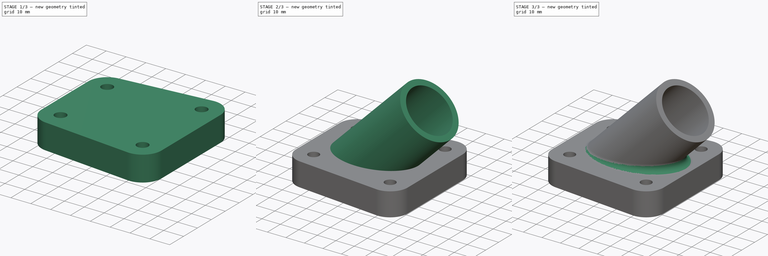
[diagram: build sequence overview — one tinted view per stage of 3, left to right]
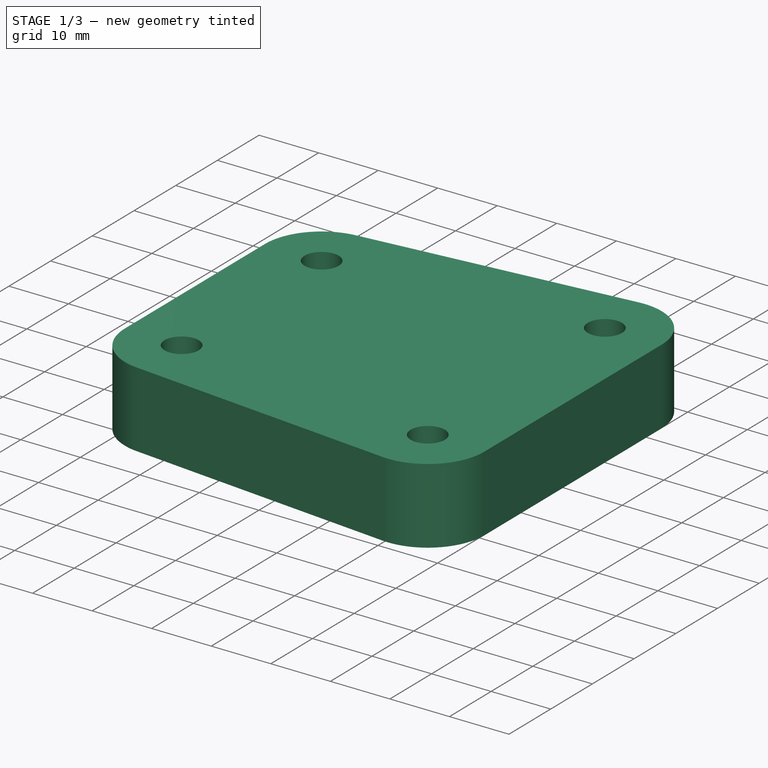
[diagram: stage 1 of 3 — iso view after this stage's code; geometry added in this stage tinted green]
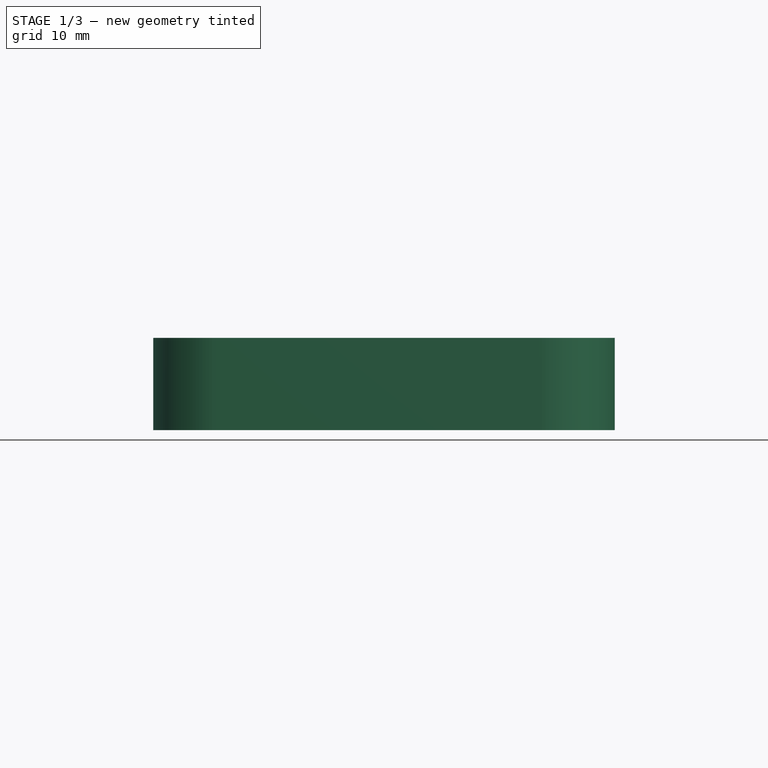
[diagram: stage 1 of 3 — front view after this stage's code; geometry added in this stage tinted green]
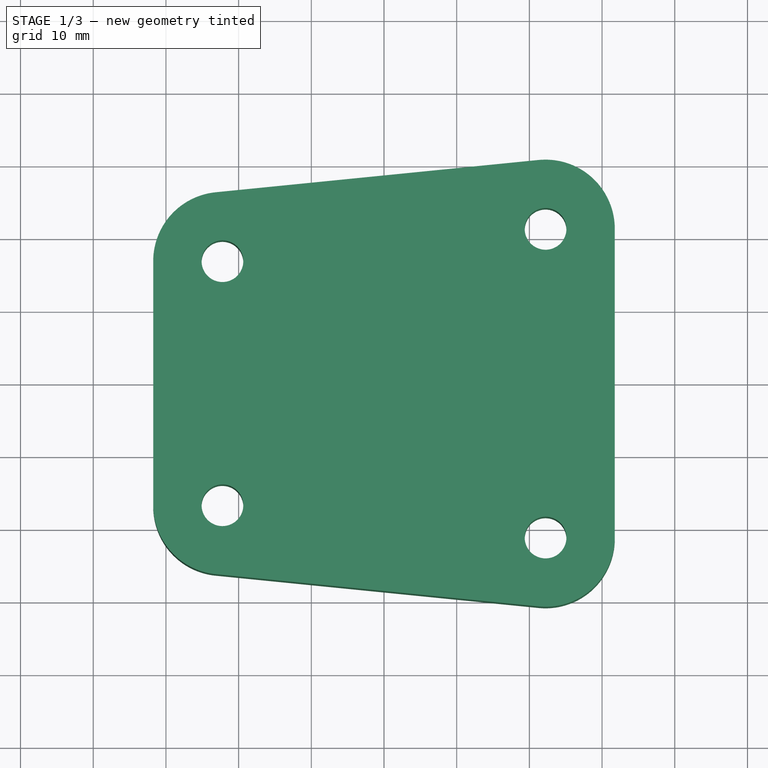
[diagram: stage 1 of 3 — top view after this stage's code; geometry added in this stage tinted green]
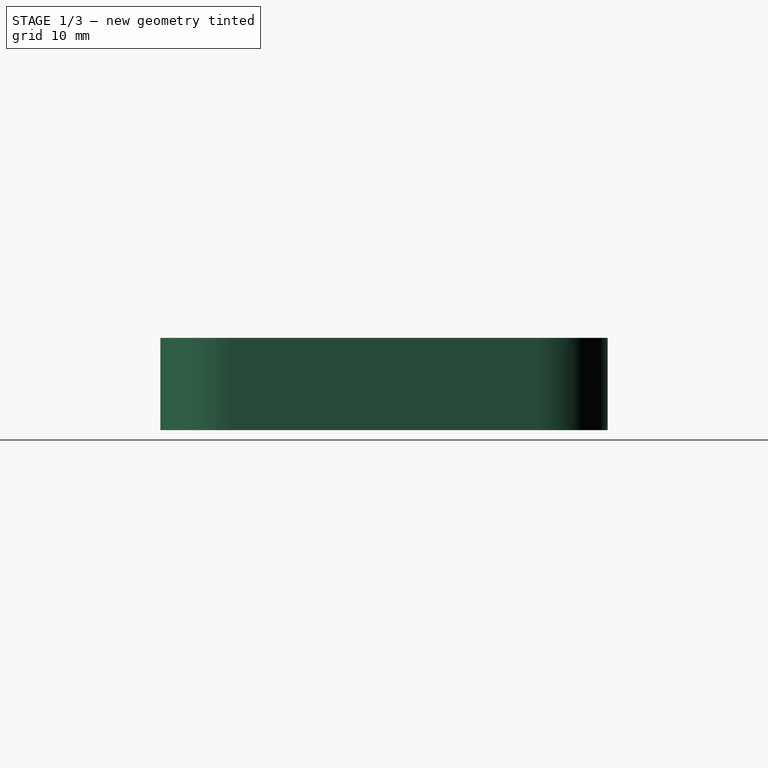
[diagram: stage 1 of 3 — right view after this stage's code; geometry added in this stage tinted green]
FCSTD DOCUMENT  (FreeCAD 0.17R9467 (Git))
Label: Moderate
License: All rights reserved
LicenseURL: http://en.wikipedia.org/wiki/All_rights_reserved
objects: Sketcher::SketchObject×5, PartDesign::Pocket×3, PartDesign::Body×3, PartDesign::Pad×2, Spreadsheet::Sheet×1, PartDesign::Plane×1, Part::FeaturePython×1, PartDesign::Fillet×1
note: 21 computed .brp shape members not serialized (recipe doc carries the construction recipe); baked Part::Feature solids carry a one-line shape summary decoded from their .brp

FEATURE [Spreadsheet::Sheet] Spreadsheet
  cells = A1=Inches; B1(inches)=25.399999999999999
FEATURE [Sketcher::SketchObject] Sketch
  MapMode = 5
  Support = -> [XY_Plane]
  expr: Constraints[23] = 0.375 * Spreadsheet.inches
  expr: Constraints[22] = 1.75 * Spreadsheet.inches
  expr: Constraints[21] = 0.66100000000000003 * 2 * Spreadsheet.inches
  expr: Constraints[20] = 1.6719999999999999 * Spreadsheet.inches
  sketch-geometry (8):
    g0: LineSegment StartX=-23.1728 StartY=26.2671 StartZ=0 EndX=21.2772 EndY=30.7121 EndZ=0
    g1: LineSegment StartX=31.75 StartY=21.2344 StartZ=0 EndX=31.75 EndY=-21.2344 EndZ=0
    g2: LineSegment StartX=21.2772 StartY=-30.7121 StartZ=0 EndX=-23.1728 EndY=-26.2671 EndZ=0
    g3: LineSegment StartX=-31.75 StartY=16.7894 StartZ=0 EndX=-31.75 EndY=-16.7894 EndZ=0
    g4: ArcOfCircle CenterX=-22.225 CenterY=16.7894 CenterZ=0 NormalX=0 NormalY=0 NormalZ=1 Radius=9.525 StartAngle=1.67046 EndAngle=3.14159
    g5: ArcOfCircle CenterX=-22.225 CenterY=-16.7894 CenterZ=0 NormalX=0 NormalY=0 NormalZ=1 Radius=9.525 StartAngle=3.14159 EndAngle=4.61272
    g6: ArcOfCircle CenterX=22.225 CenterY=-21.2344 CenterZ=0 NormalX=0 NormalY=0 NormalZ=1 Radius=9.525 StartAngle=4.61272 EndAngle=6.28319
    g7: ArcOfCircle CenterX=22.225 CenterY=21.2344 CenterZ=0 NormalX=0 NormalY=0 NormalZ=1 Radius=9.525 StartAngle=6.28319 EndAngle=7.95365
  constraints (26):
    c: Vertical(g1)
    c: Vertical(g3)
    c: Coincident(g1,g7)
    c: Coincident(g7,g0)
    c: Coincident(g0,g4)
    c: Coincident(g3,g4)
    c: Coincident(g3,g5)
    c: Coincident(g2,g5)
    c: Coincident(g2,g6)
    c: Coincident(g1,g6)
    c: Symmetric(g7,g6,g-1)
    c: Symmetric(g4,g5,g-1)
    c: Tangent(g5,g3,g3) = -1.5708
    c: Tangent(g0,g4)
    c: Tangent(g2,g5)
    c: Tangent(g7,g0)
    c: Tangent(g6,g1)
    c: Tangent(g1,g7)
    c: Tangent(g6,g2)
    c: Tangent(g3,g4)
    c: DistanceY(g1,g1) = 42.4688
    c: DistanceY(g3,g3) = 33.5788
    c: DistanceX(g5,g6) = 44.45
    c: Radius(g4) = 9.525
    c: Equal(g7,g4)
    c: DistanceX(g5,g-1) = 22.225
FEATURE [PartDesign::Pad] Pad
  Length = 12.7
  Length2 = 100
  Profile = -> Sketch
  Reversed = true
  Type = 0
  expr: Length = 1 / 2 * Spreadsheet.inches
FEATURE [PartDesign::Body] Body001
  Model = -> [DatumPlane,Sketch001,Pad001,Sketch002,Pocket]
  Origin = -> Body001Origin
  Tip = -> Pocket
FEATURE [Sketcher::SketchObject] Sketch004
  ExternalGeometry = -> [Pad]
  MapMode = 5
  Support = -> [XY_Plane]
  expr: Constraints[7] = 0.22600000000000001 * Spreadsheet.inches / 2
  sketch-geometry (4):
    g0: Circle CenterX=-22.225 CenterY=16.7894 CenterZ=0 NormalX=0 NormalY=0 NormalZ=1 Radius=2.8702
    g1: Circle CenterX=-22.225 CenterY=-16.7894 CenterZ=0 NormalX=0 NormalY=0 NormalZ=1 Radius=2.8702
    g2: Circle CenterX=22.225 CenterY=-21.2344 CenterZ=0 NormalX=0 NormalY=0 NormalZ=1 Radius=2.8702
    g3: Circle CenterX=22.225 CenterY=21.2344 CenterZ=0 NormalX=0 NormalY=0 NormalZ=1 Radius=2.8702
  constraints (8):
    c: Coincident(g3,g-4)
    c: Coincident(g2,g-5)
    c: Coincident(g1,g-6)
    c: Coincident(g0,g-3)
    c: Equal(g0,g3)
    c: Equal(g3,g1)
    c: Equal(g1,g2)
    c: Radius(g0) = 2.8702
FEATURE [PartDesign::Pocket] Pocket002
  BaseFeature = -> Pad
  Length = 5
  Profile = -> Sketch004
  Type = 1
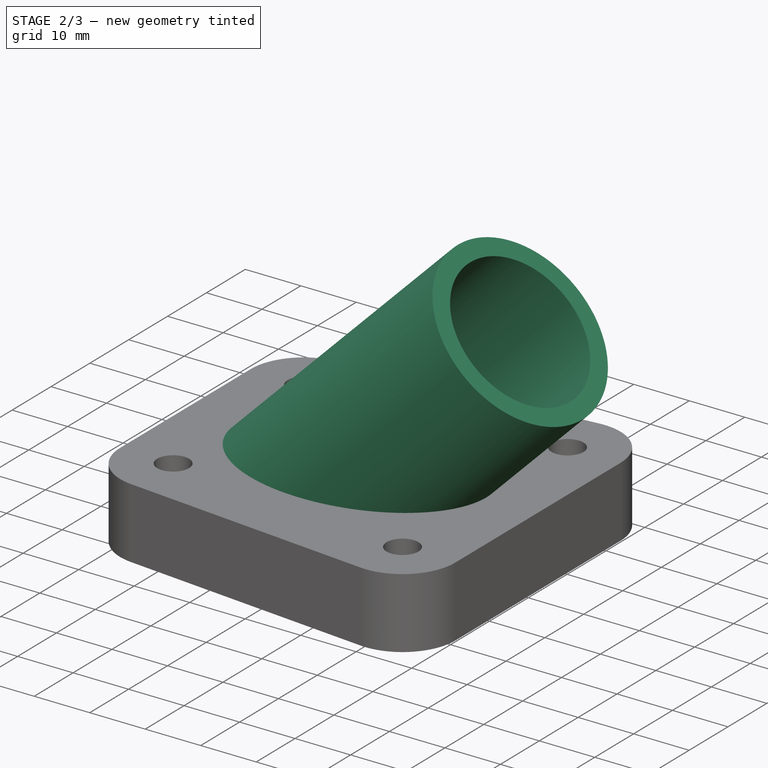
[diagram: stage 2 of 3 — iso view after this stage's code; geometry added in this stage tinted green]
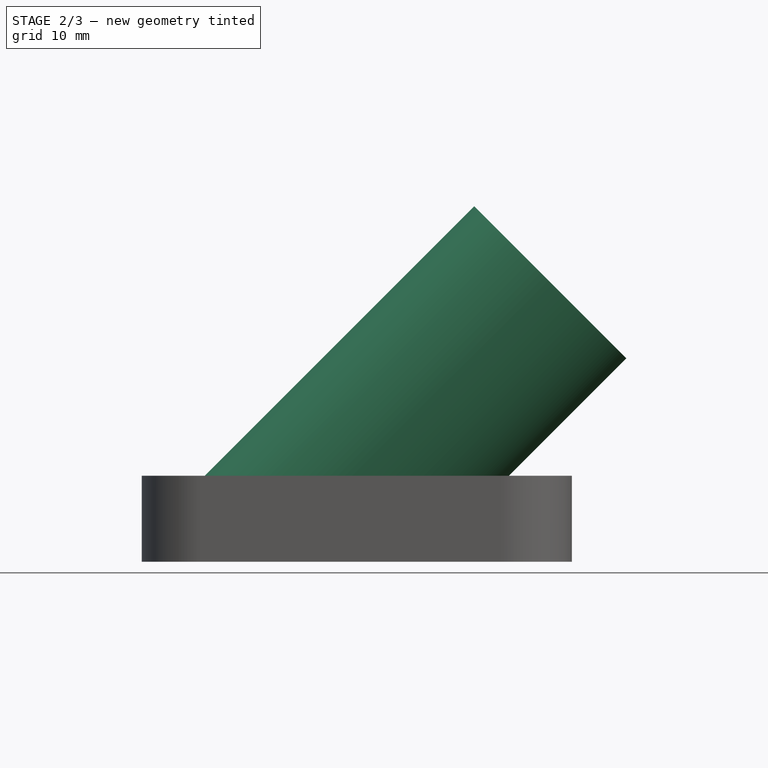
[diagram: stage 2 of 3 — front view after this stage's code; geometry added in this stage tinted green]
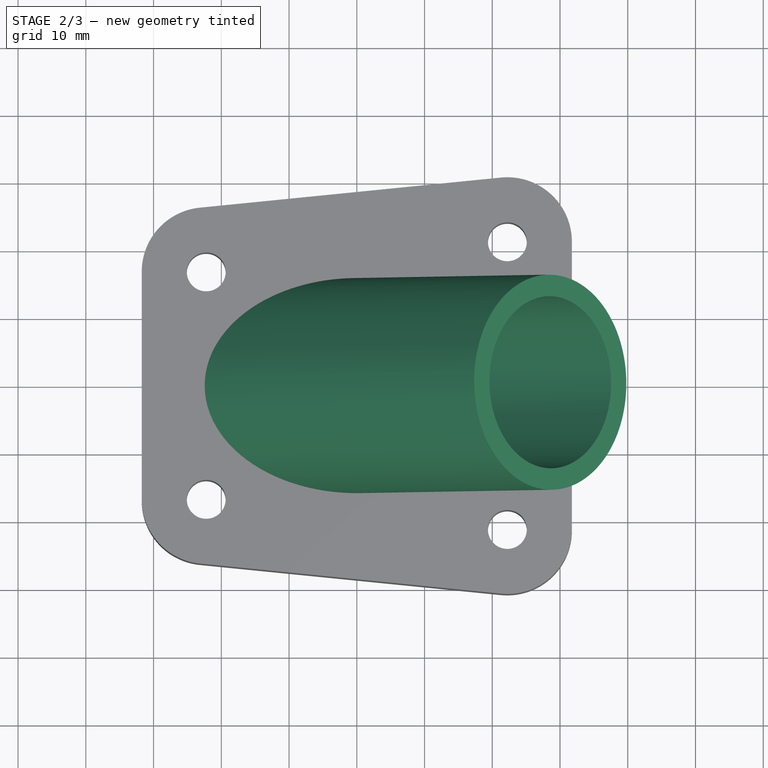
[diagram: stage 2 of 3 — top view after this stage's code; geometry added in this stage tinted green]
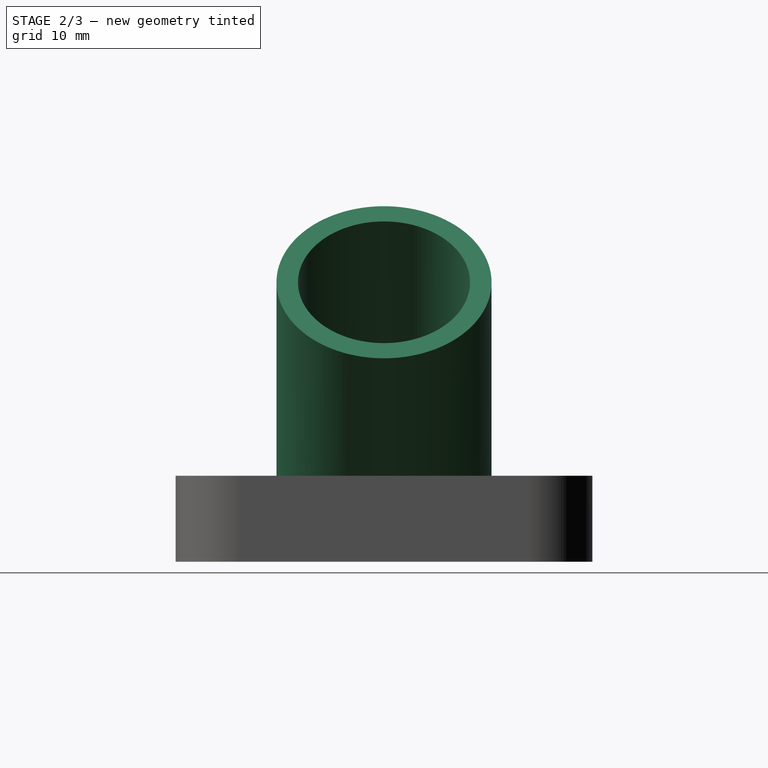
[diagram: stage 2 of 3 — right view after this stage's code; geometry added in this stage tinted green]
FEATURE [PartDesign::Plane] DatumPlane
  MapMode = 5
  Placement = pos=(0,0,0) rot=(0,1,0;0.785398rad)
  Support = -> [XY_Plane001]
  superPlacement = pos=(0,0,0) rot=(0,1,0;0.785398rad)
FEATURE [Sketcher::SketchObject] Sketch001
  MapMode = 5
  Placement = pos=(0,0,0) rot=(0,1,0;0.785398rad)
  Support = -> [DatumPlane]
  expr: Constraints[1] = 1.25 / 2 * Spreadsheet.inches
  sketch-geometry (1):
    g0: Circle CenterX=0 CenterY=0 CenterZ=0 NormalX=0 NormalY=0 NormalZ=1 Radius=15.875
  constraints (2):
    c: Coincident(g0,g-1)
    c: Radius(g0) = 15.875
FEATURE [PartDesign::Pad] Pad001
  Length = 40.386
  Length2 = 20
  Placement = pos=(0,0,0) rot=(0,1,0;0.785398rad)
  Profile = -> Sketch001
  Type = 4
  expr: Length = 1.5900000000000001 * Spreadsheet.inches
FEATURE [Sketcher::SketchObject] Sketch002
  MapMode = 5
  Placement = pos=(0,0,0) rot=(0,1,0;0.785398rad)
  Support = -> [DatumPlane]
  expr: Constraints[1] = 1 * Spreadsheet.inches / 2
  sketch-geometry (1):
    g0: Circle CenterX=0 CenterY=0 CenterZ=0 NormalX=0 NormalY=0 NormalZ=1 Radius=12.7
  constraints (2):
    c: Coincident(g0,g-1)
    c: Radius(g0) = 12.7
FEATURE [PartDesign::Pocket] Pocket
  BaseFeature = -> Pad001
  Length = 5
  Midplane = true
  Placement = pos=(0,0,0) rot=(0,1,0;0.785398rad)
  Profile = -> Sketch002
  Type = 1
FEATURE [PartDesign::Body] Body
  Model = -> [Sketch,Pad,Sketch004,Pocket002]
  Origin = -> BodyOrigin
  Tip = -> Pocket002
FEATURE [Part::FeaturePython] Connect  # WARN: FeaturePython — macro-defined, semantics opaque (R4)
  Objects = -> [Body,Body001]
  Refine = true
  Tolerance = 0
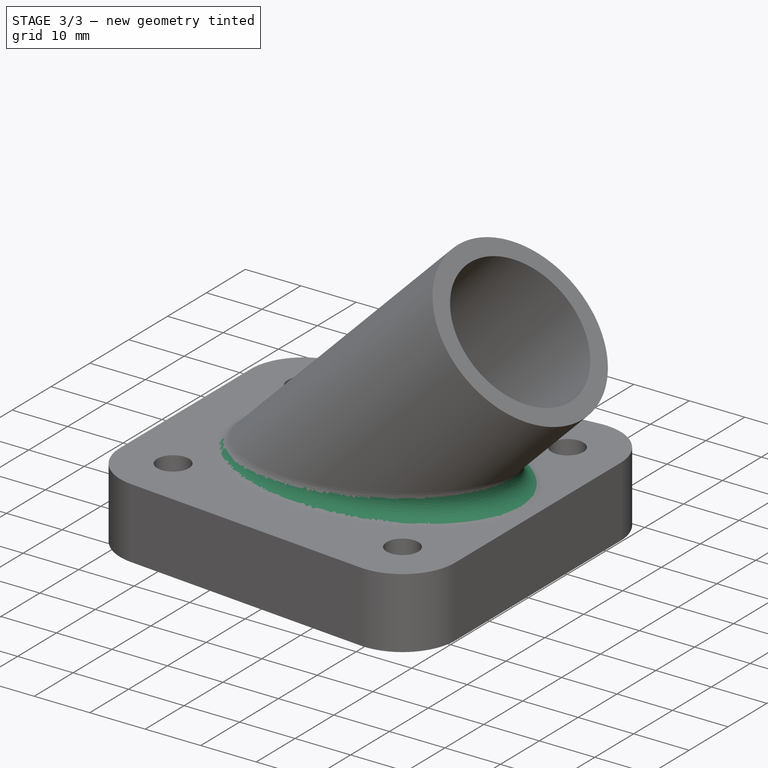
[diagram: stage 3 of 3 — iso view after this stage's code; geometry added in this stage tinted green]
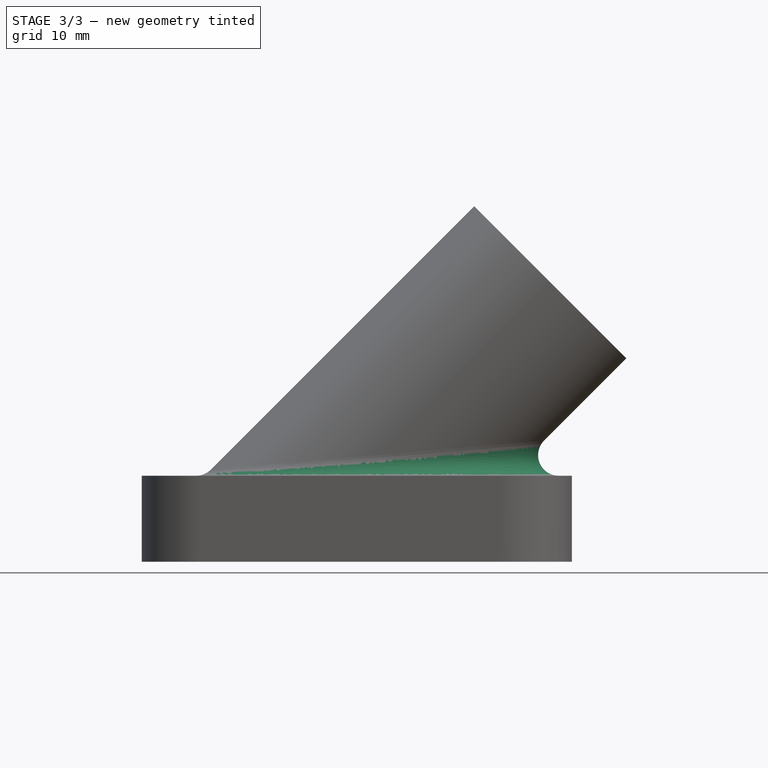
[diagram: stage 3 of 3 — front view after this stage's code; geometry added in this stage tinted green]
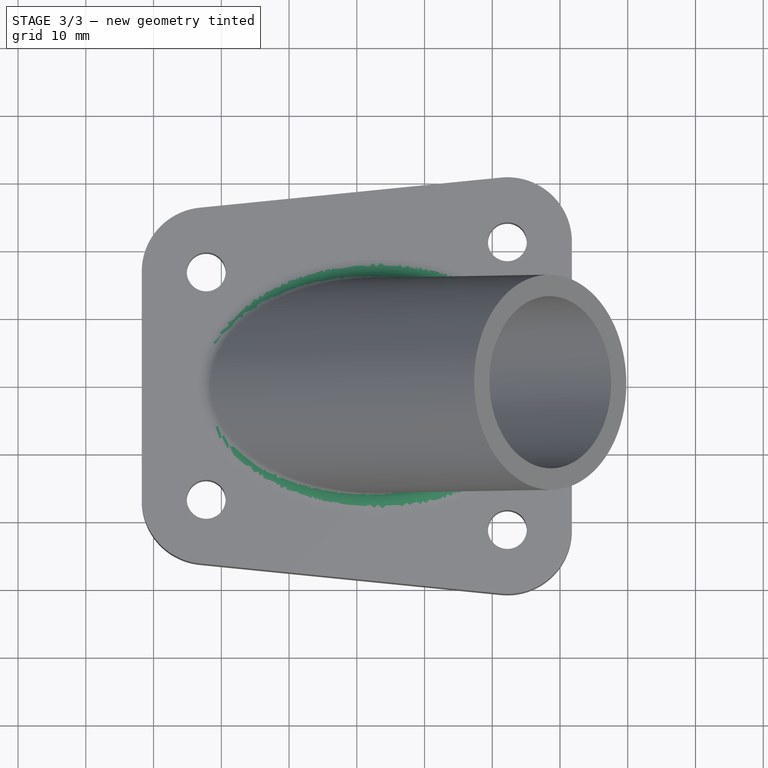
[diagram: stage 3 of 3 — top view after this stage's code; geometry added in this stage tinted green]
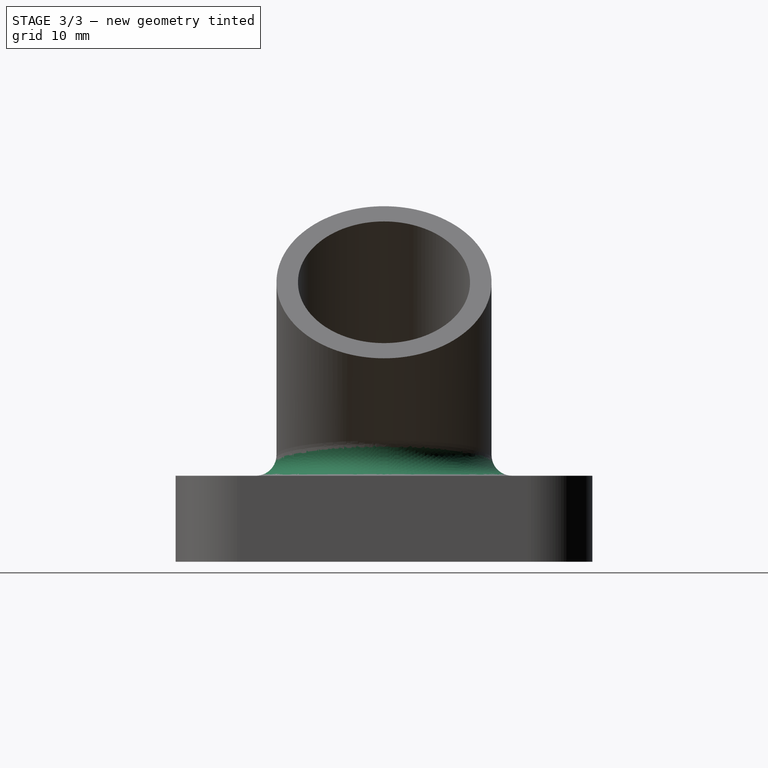
[diagram: stage 3 of 3 — right view after this stage's code; geometry added in this stage tinted green]
FEATURE [Sketcher::SketchObject] Sketch003
  ExternalGeometry = -> [Connect]
  MapMode = 5
  Support = -> [XY_Plane002]
  sketch-geometry (5):
    g0: Ellipse CenterX=0 CenterY=0 CenterZ=0 NormalX=0 NormalY=0 NormalZ=1 MajorRadius=17.9605 MinorRadius=12.7 AngleXU=0
    g1: LineSegment [constr] StartX=17.9605 StartY=0 StartZ=0 EndX=-17.9605 EndY=0 EndZ=0
    g2: LineSegment [constr] StartX=0 StartY=12.7 StartZ=0 EndX=0 EndY=-12.7 EndZ=0
    g3: GeomPoint [constr] X=12.7 Y=0 Z=0
    g4: GeomPoint [constr] X=-12.7 Y=0 Z=0
  constraints (2):
    c: InternalAlignment(g1-g4 -> g0) x4
    c: Horizontal(g1)
FEATURE [PartDesign::Pocket] Pocket001
  BaseFeature = -> Connect
  Length = 5
  Profile = -> Sketch003
  Type = 1
FEATURE [PartDesign::Fillet] Fillet
  Base = -> Pocket001 [Edge18]
  BaseFeature = -> Pocket001
  Radius = 3.048
  expr: Radius = 0.12 * Spreadsheet.inches
FEATURE [PartDesign::Body] Body002
  BaseFeature = -> Connect
  Model = -> [Sketch003,Pocket001,Fillet]
  Origin = -> Body002Origin
  Tip = -> Fillet
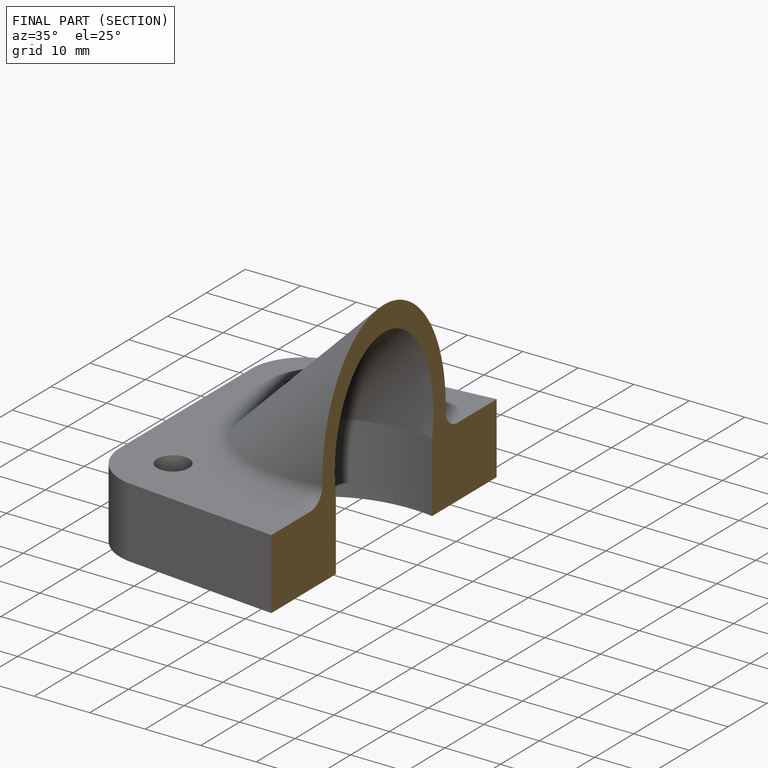
[diagram: finished part — half-section view (interior)]
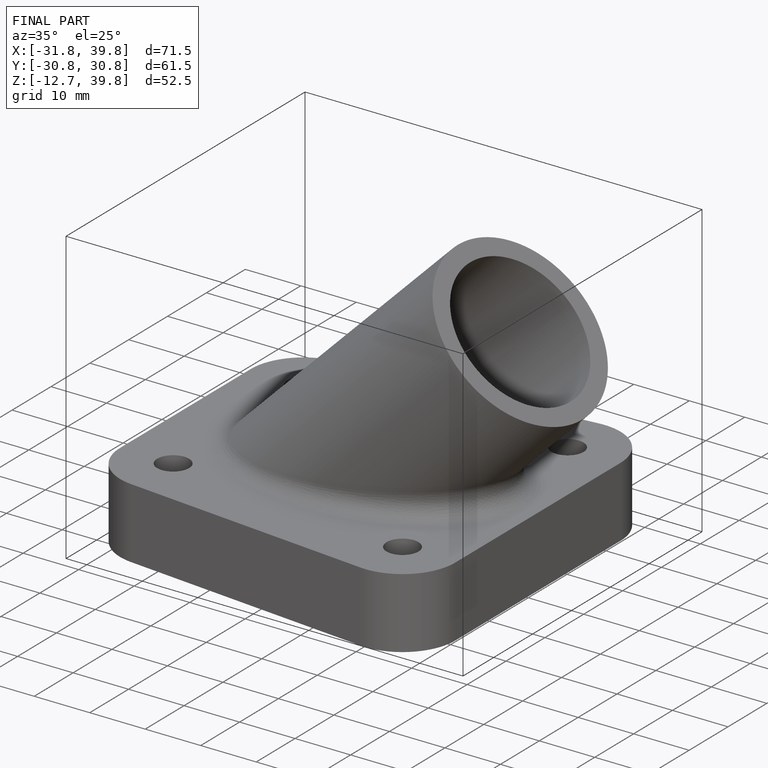
[diagram: finished part — iso view with bounding-box wireframe]
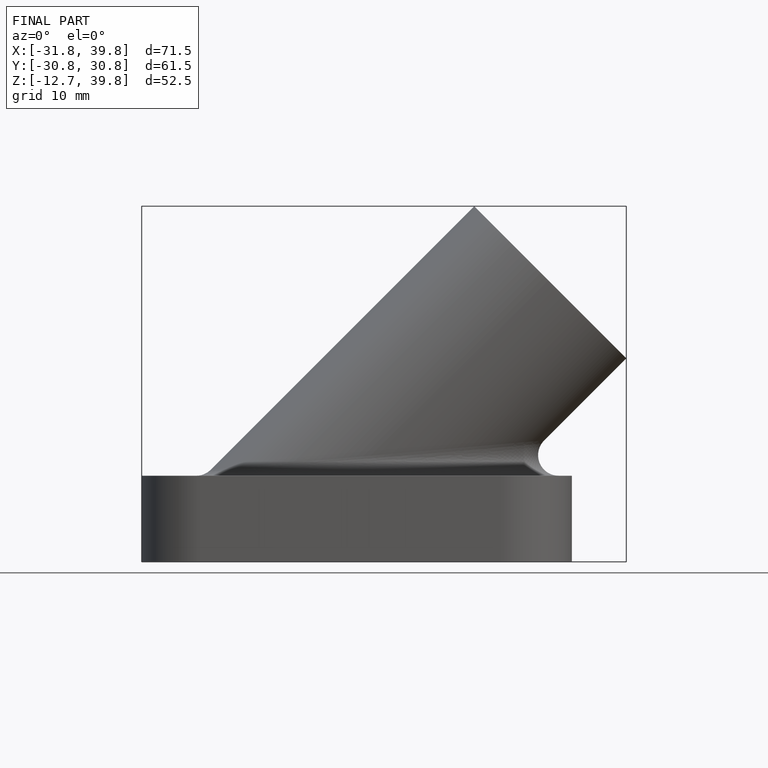
[diagram: finished part — front view with bounding-box wireframe]
